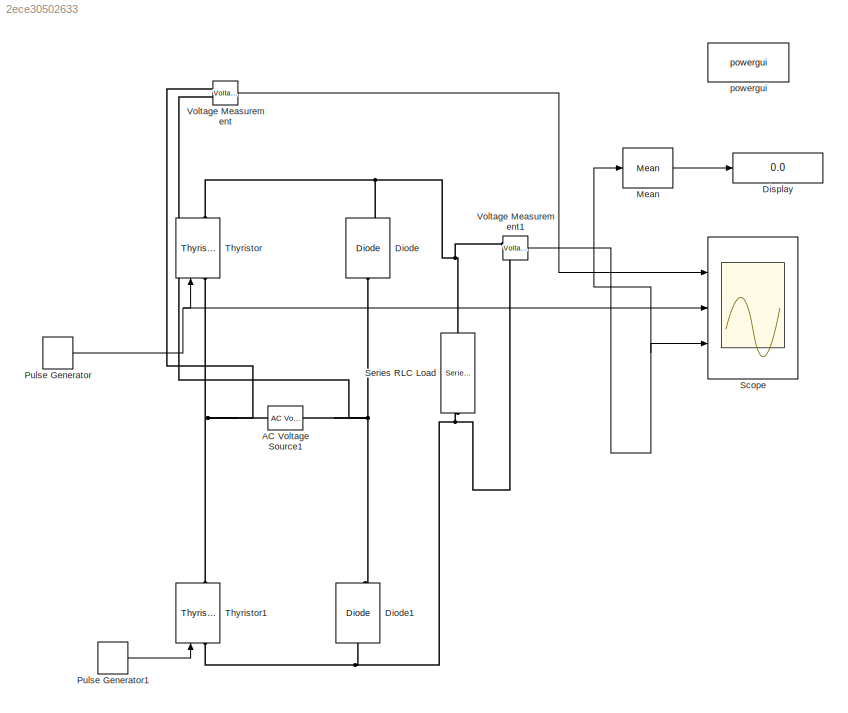
MODEL slx_2ece30502633
KIND model
CONFIG AbsTol = auto
CONFIG EnableMultiTasking = off
CONFIG FixedStep = auto
CONFIG MaxStep = auto
CONFIG MinStep = auto
CONFIG RelTol = 1e-3
CONFIG SampleTimeConstraint = Unconstrained
CONFIG SolverName = VariableStepAuto
CONFIG StartTime = 0.0
CONFIG StopTime = 0.06
BLOCK [Reference] AC Voltage Source1  REF=spsACVoltageSourceLib/AC Voltage Source
  NameLocation = right
  Ports = [0, 0, 0, 0, 0, 1, 1]
  SourceBlock = spsACVoltageSourceLib/AC Voltage Source
  SourceProductBaseCode = PS
  SourceType = AC Voltage Source
BLOCK [Reference] Diode  REF=spsDiodeLib/Diode
  NameLocation = right
  Ports = [0, 1, 0, 0, 0, 1, 1]
  SourceBlock = spsDiodeLib/Diode
  SourceProductBaseCode = PS
  SourceType = Diode
BLOCK [Reference] Diode1  REF=spsDiodeLib/Diode
  NameLocation = right
  Ports = [0, 1, 0, 0, 0, 1, 1]
  SourceBlock = spsDiodeLib/Diode
  SourceProductBaseCode = PS
  SourceType = Diode
BLOCK [Display] Display
  Decimation = 1
  Ports = [1]
BLOCK [Reference] Mean  REF=spsMeanLib/Mean
  Ports = [1, 1]
  SourceBlock = spsMeanLib/Mean
  SourceProductBaseCode = PS
  SourceType = Mean
BLOCK [DiscretePulseGenerator] Pulse Generator
  Amplitude = 5
  Period = 20e-3
  PhaseDelay = 1.666e-3
  Ports = [0, 1]
  PulseType = Time based
  PulseWidth = 10
BLOCK [DiscretePulseGenerator] Pulse Generator1
  Amplitude = 5
  Period = 20e-3
  PhaseDelay = 11.666e-3
  Ports = [0, 1]
  PulseType = Time based
  PulseWidth = 10
BLOCK [Scope] Scope
  Floating = off
  NumInputPorts = 3
  Ports = [3]
  ScopeSpecificationString = Simulink.scopes.TimeScopeBlockCfg('CurrentConfiguration', extmgr.ConfigurationSet(extmgr.Configuration('Core','General UI',true),extmgr.Configuration('Core','Source UI',true),extmgr.Configuration('Sources','WiredSimulink',true),extmgr.Configuration('Visuals','Time Domain',true,'SerializedDisplays',{struct('MinYLimReal','-54.60701','MaxYLimReal','80.2403','YLabelReal','','MinYLimMag','0.00000','Max...<+2881ch>
BLOCK [Reference] Series RLC Load  REF=spsSeriesRLCLoadLib/Series RLC Load
  AttributesFormatString = \n
  NameLocation = left
  Ports = [0, 0, 0, 0, 0, 1, 1]
  SourceBlock = spsSeriesRLCLoadLib/Series RLC Load
  SourceProductBaseCode = PS
  SourceType = Series RLC Load
BLOCK [Reference] Thyristor  REF=spsThyristorLib/Thyristor
  NameLocation = right
  Ports = [1, 1, 0, 0, 0, 1, 1]
  SourceBlock = spsThyristorLib/Thyristor
  SourceProductBaseCode = PS
  SourceType = Thyristor
BLOCK [Reference] Thyristor1  REF=spsThyristorLib/Thyristor
  NameLocation = right
  Ports = [1, 1, 0, 0, 0, 1, 1]
  SourceBlock = spsThyristorLib/Thyristor
  SourceProductBaseCode = PS
  SourceType = Thyristor
BLOCK [Reference] Voltage Measurement  REF=spsVoltageMeasurementLib/Voltage Measurement
  Ports = [0, 1, 0, 0, 0, 2]
  SourceBlock = spsVoltageMeasurementLib/Voltage Measurement
  SourceProductBaseCode = PS
  SourceType = Voltage Measurement
  UserDataPersistent = on
BLOCK [Reference] Voltage Measurement1  REF=spsVoltageMeasurementLib/Voltage Measurement
  Ports = [0, 1, 0, 0, 0, 2]
  SourceBlock = spsVoltageMeasurementLib/Voltage Measurement
  SourceProductBaseCode = PS
  SourceType = Voltage Measurement
  UserDataPersistent = on
BLOCK [Reference] powergui  REF=spspowerguiLib/powergui
  Ports = []
  Priority = 1
  SourceBlock = spspowerguiLib/powergui
  SourceProductBaseCode = PS
  SourceType = PSB option menu block
LINE Mean:1 -> Display:1
LINE Pulse Generator1:1 -> Thyristor1:1
NET Pulse Generator:1 -> Scope:2, Thyristor:1
NET Voltage Measurement1:1 -> Mean:1, Scope:3
LINE Voltage Measurement:1 -> Scope:1
PNET net1: AC Voltage Source1:LConn1 -- Diode1:RConn1 -- Diode:LConn1 -- Voltage Measurement:LConn2
PNET net2: AC Voltage Source1:RConn1 -- Thyristor1:RConn1 -- Thyristor:LConn1 -- Voltage Measurement:LConn1
PNET net3: Diode1:LConn1 -- Series RLC Load:RConn1 -- Thyristor1:LConn1 -- Voltage Measurement1:LConn2
PNET net4: Diode:RConn1 -- Series RLC Load:LConn1 -- Thyristor:RConn1 -- Voltage Measurement1:LConn1
note: NET lines group one-source signal fan-out (src -> all destinations, sorted); 1:1 wires keep LINE; PNET lines group multi-terminal physical nets as a canonical sorted terminal list (undirected conserving connections); 2-terminal nets keep the pairwise PLINE form
